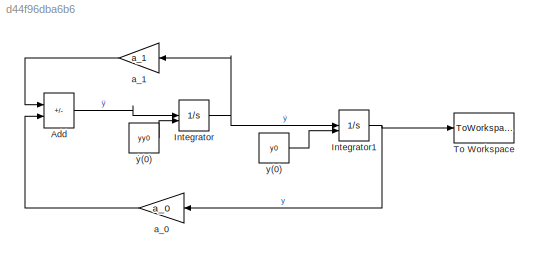
MODEL slx_d44f96dba6b6
KIND model
CONFIG AbsTol = auto
CONFIG EnableMultiTasking = off
CONFIG FixedStep = 0.001
CONFIG MaxStep = auto
CONFIG MinStep = auto
CONFIG RelTol = 1e-3
CONFIG SampleTimeConstraint = Unconstrained
CONFIG SolverName = ode4
CONFIG StartTime = 0.0
CONFIG StopTime = 6
BLOCK [Constant]  ẏ(0)
  Value = yy0
BLOCK [Sum] Add
  IconShape = rectangular
  Inputs = --
BLOCK [Integrator] Integrator
  InitialConditionSource = external
BLOCK [Integrator] Integrator1
  InitialConditionSource = external
BLOCK [ToWorkspace] To Workspace
  FixptAsFi = on
  MaxDataPoints = inf
  SampleTime = -1
  SaveFormat = Timeseries
  VariableName = y
BLOCK [Gain] a_0
  Gain = a_0
BLOCK [Gain] a_1
  Gain = a_1
BLOCK [Constant] y(0)
  Value = y0
LINE  ẏ(0):1 -> Integrator:2
LINE Add:1 -> Integrator:1
NET Integrator1:1 -> To Workspace:1, a_0:1
NET Integrator:1 -> Integrator1:1, a_1:1
LINE a_0:1 -> Add:2
LINE a_1:1 -> Add:1
LINE y(0):1 -> Integrator1:2
note: NET lines group one-source signal fan-out (src -> all destinations, sorted); 1:1 wires keep LINE
